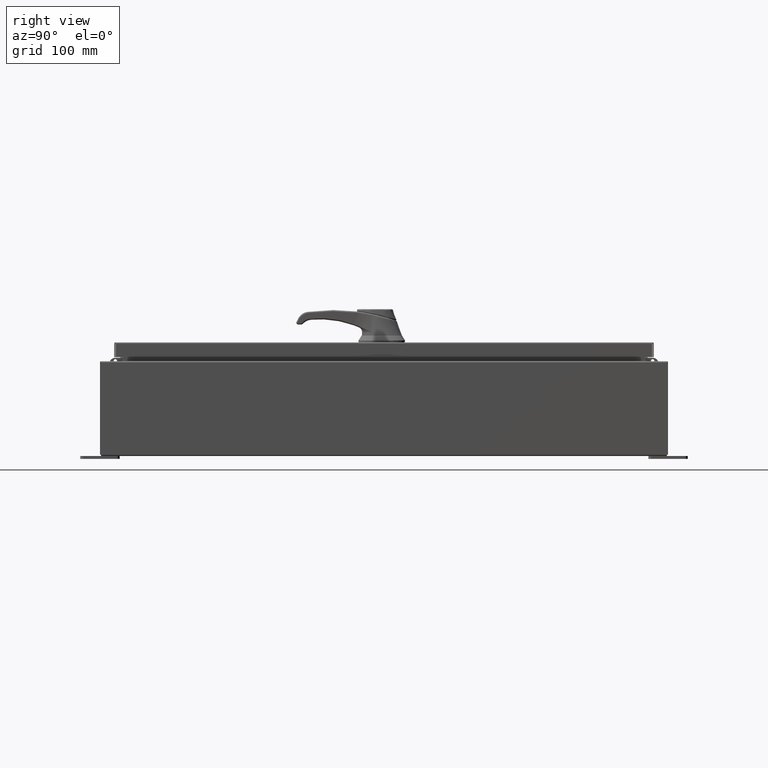
[diagram: clean part render]
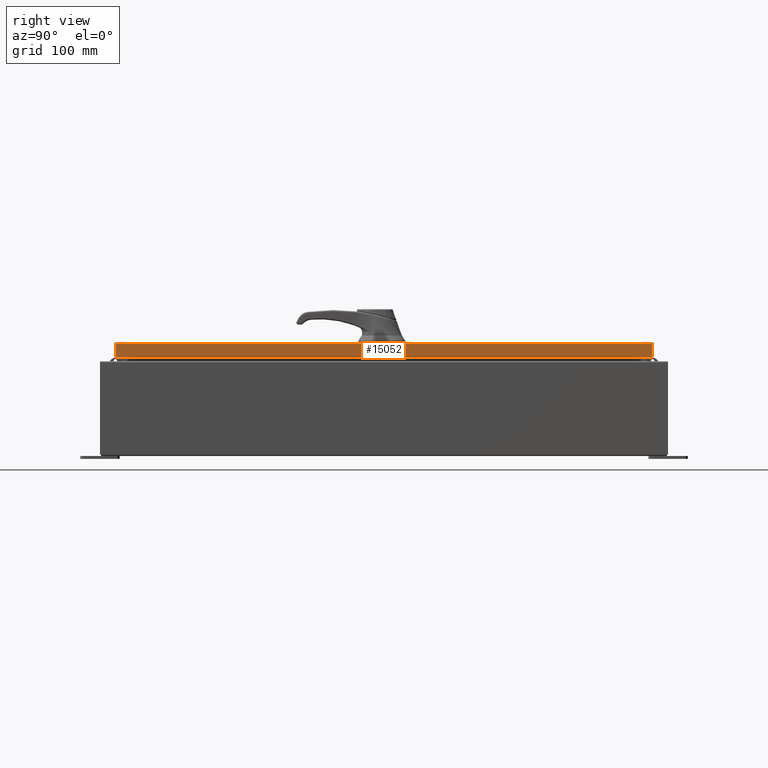
[diagram: same view with one face highlighted and labeled with its STEP entity id]
A machine part, right view. The second image highlights one B-rep face of the part: STEP entity #15052.
In plain terms, the highlighted planar face has unit normal (1, 0, 0).
Its self-contained STEP definition (entity closure, byte-faithful):
#1098 = FACE_OUTER_BOUND ( 'NONE', #74255, .T. ) ;
#3412 = EDGE_CURVE ( 'NONE', #9503, #11360, #93419, .T. ) ;
#6723 = LINE ( 'NONE', #30846, #104926 ) ;
#9503 = VERTEX_POINT ( 'NONE', #100662 ) ;
#11360 = VERTEX_POINT ( 'NONE', #119040 ) ;
#15052 = ADVANCED_FACE ( 'NONE', ( #1098 ), #33498, .T. ) ;
#15865 = ORIENTED_EDGE ( 'NONE', *, *, #3412, .F. ) ;
#17226 = EDGE_CURVE ( 'NONE', #101446, #11360, #105237, .T. ) ;
#17588 = VECTOR ( 'NONE', #117936, 39.37007874015748100 ) ;
#18458 = VECTOR ( 'NONE', #80253, 39.37007874015748100 ) ;
#18573 = CARTESIAN_POINT ( 'NONE',  ( 11.07799999999999800, 17.00515786437628000, -0.9376999999999997600 ) ) ;
#24363 = CARTESIAN_POINT ( 'NONE',  ( 11.07799999999999600, 17.00515786437627600, -0.08770000000000008300 ) ) ;
#28542 = ORIENTED_EDGE ( 'NONE', *, *, #94613, .F. ) ;
#30846 = CARTESIAN_POINT ( 'NONE',  ( 11.07799999999999800, -17.09399999999999800, -0.9376999999999997600 ) ) ;
#33498 = PLANE ( 'NONE',  #104776 ) ;
#37183 = DIRECTION ( 'NONE',  ( 0.0000000000000000000, -1.000000000000000000, 0.0000000000000000000 ) ) ;
#42170 = CARTESIAN_POINT ( 'NONE',  ( 11.07799999999999600, -17.00515786437626500, -0.07469999999999980800 ) ) ;
#43036 = DIRECTION ( 'NONE',  ( 1.000000000000000000, 0.0000000000000000000, 2.532419924601866100E-015 ) ) ;
#43111 = ORIENTED_EDGE ( 'NONE', *, *, #17226, .T. ) ;
#43827 = LINE ( 'NONE', #70692, #18458 ) ;
#70692 = CARTESIAN_POINT ( 'NONE',  ( 11.07799999999999600, 17.00515786437627600, 1.470613442758536900E-013 ) ) ;
#74255 = EDGE_LOOP ( 'NONE', ( #15865, #28542, #98672, #43111 ) ) ;
#80253 = DIRECTION ( 'NONE',  ( -2.532419924601866100E-015, -6.982962677686265900E-015, 1.000000000000000000 ) ) ;
#85250 = CARTESIAN_POINT ( 'NONE',  ( 11.07799999999999600, 0.0000000000000000000, -0.08770000000000008300 ) ) ;
#90348 = CARTESIAN_POINT ( 'NONE',  ( 11.07799999999999600, 0.0000000000000000000, 2.831496158075104400E-014 ) ) ;
#93419 = LINE ( 'NONE', #42170, #17588 ) ;
#94613 = EDGE_CURVE ( 'NONE', #107512, #9503, #6723, .T. ) ;
#96937 = EDGE_CURVE ( 'NONE', #107512, #101446, #43827, .T. ) ;
#98672 = ORIENTED_EDGE ( 'NONE', *, *, #96937, .T. ) ;
#100662 = CARTESIAN_POINT ( 'NONE',  ( 11.07799999999999800, -17.00515786437625800, -0.9376999999999997600 ) ) ;
#101446 = VERTEX_POINT ( 'NONE', #24363 ) ;
#104776 = AXIS2_PLACEMENT_3D ( 'NONE', #90348, #43036, #109314 ) ;
#104926 = VECTOR ( 'NONE', #116157, 39.37007874015748100 ) ;
#105237 = LINE ( 'NONE', #85250, #121491 ) ;
#107512 = VERTEX_POINT ( 'NONE', #18573 ) ;
#109314 = DIRECTION ( 'NONE',  ( 2.532419924601866100E-015, 0.0000000000000000000, -1.000000000000000000 ) ) ;
#116157 = DIRECTION ( 'NONE',  ( 0.0000000000000000000, -1.000000000000000000, 0.0000000000000000000 ) ) ;
#117936 = DIRECTION ( 'NONE',  ( -2.532419924601866100E-015, -6.982962677686265900E-015, 1.000000000000000000 ) ) ;
#119040 = CARTESIAN_POINT ( 'NONE',  ( 11.07799999999999600, -17.00515786437626500, -0.08770000000000008300 ) ) ;
#121491 = VECTOR ( 'NONE', #37183, 39.37007874015748100 ) ;